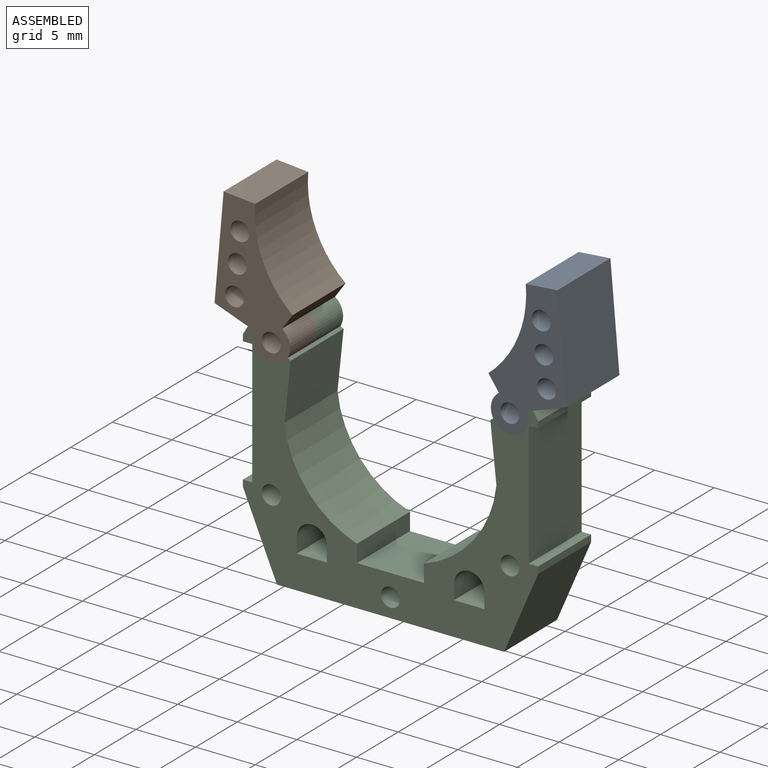
[diagram: assembled view]
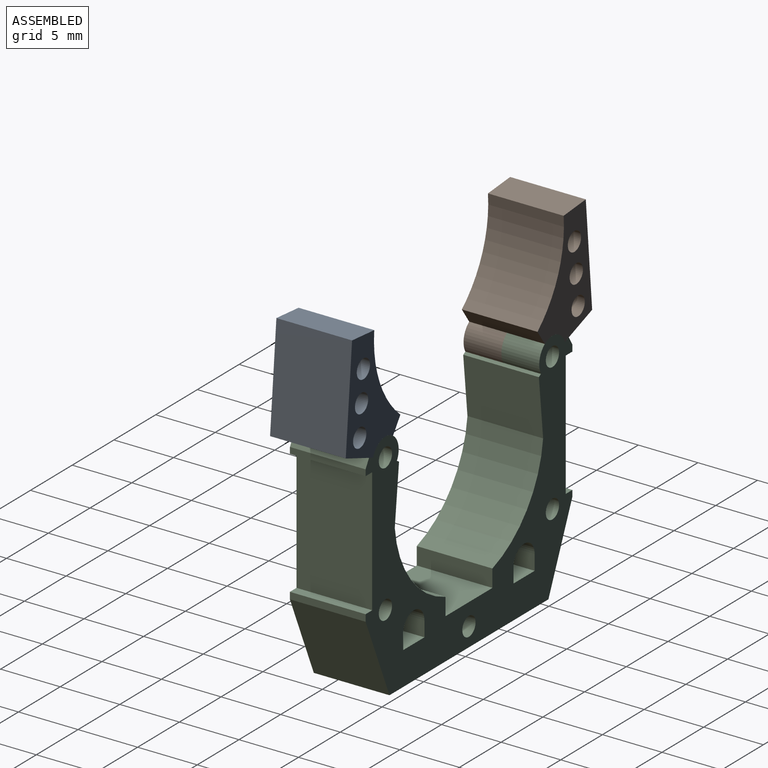
[diagram: assembled view, second angle]
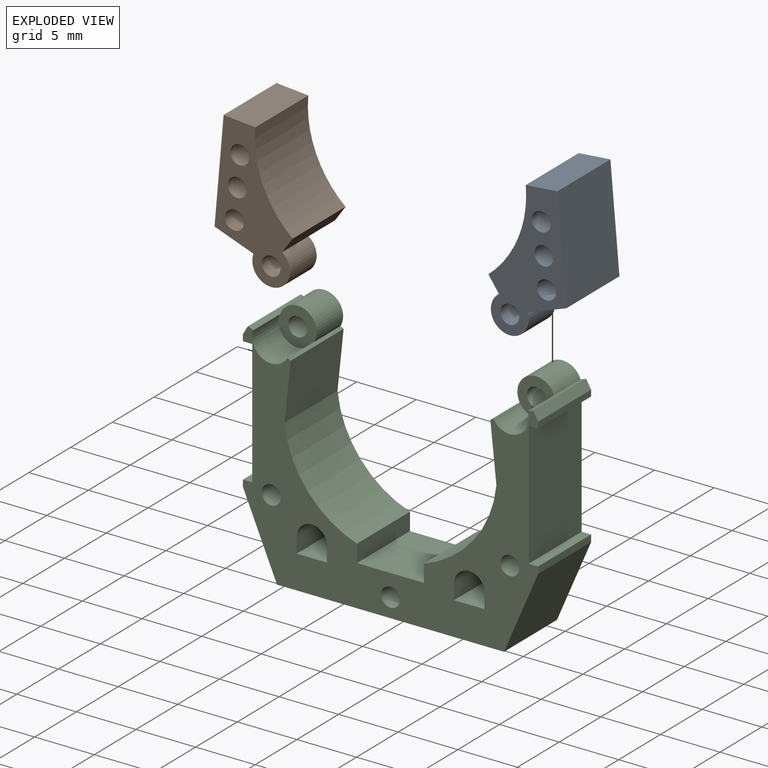
[diagram: exploded view]
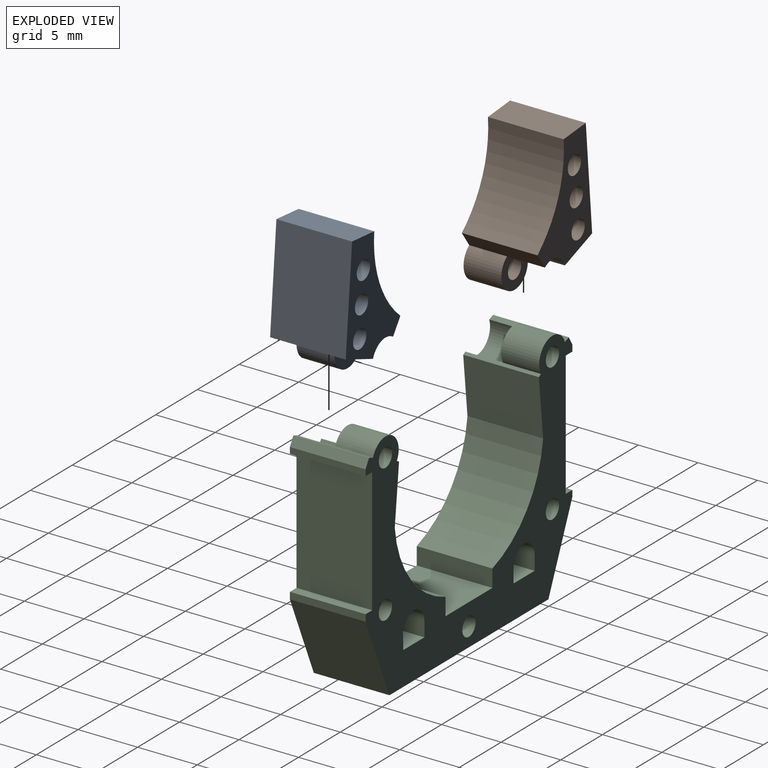
[diagram: exploded view, second angle]
ASSEMBLY  parts=3 mates=2
PART A: 14 faces, bbox 11.6x6.4x6.5 mm
  f0: cylinder r=1.59mm len=3.18mm, axis (0,1,0), area 22.4mm2, adj f2,f3,f10,f13
  f1: cylinder r=0.79mm len=3.18mm, axis (0,1,0), area 15.8mm2, adj f10,f13
  f2: plane 6.35x1.33mm, normal (0.5,0,-0.87), area 9.8mm2, adj f0,f6,f10,f11,f12
  f3: plane 6.35x3.36mm, normal (0.97,0,0.26), area 22.1mm2, adj f0,f4,f10,f11,f12
  f4: plane 8.7x6.35mm, normal (0,0,1), area 55.2mm2, adj f3,f5,f10,f11
  f5: plane 6.35x2.67mm, normal (-1,0,0), area 16.9mm2, adj f4,f6,f10,f11
  f6: cylinder r=8.94mm len=7.3mm, axis (0,1,0), area 54.3mm2, adj f2,f5,f10,f11
  f7: cylinder r=0.79mm len=6.35mm, axis (0,1,0), area 31.7mm2, adj f10,f11
  f8: cylinder r=0.79mm len=6.35mm, axis (0,1,0), area 31.7mm2, adj f10,f11
  f9: cylinder r=0.79mm len=6.35mm, axis (0,1,0), area 31.7mm2, adj f10,f11
  f10: plane 11.6x6.48mm, normal (0,-1,0), area 37.6mm2, adj f0,f1,f2,f3,f4,f5,f6,f7
  f11: plane 9.6x6.45mm, normal (0,1,0), area 31.6mm2, adj f2,f3,f4,f5,f6,f7,f8,f9
  f12: cylinder r=1.59mm len=3.18mm, axis (0,1,0), area 9.2mm2, adj f2,f3,f11,f13
  f13: plane 3.18x3.18mm, normal (0,1,0), area 5.9mm2, adj f0,f1,f12
PART B: 14 faces, bbox 11.6x6.4x6.5 mm
  f0: plane 9.6x6.45mm, normal (0,1,0), area 31.6mm2, adj f2,f3,f4,f5,f6,f7,f8,f10
  f1: cylinder r=0.79mm len=3.18mm, axis (0,1,0), area 15.8mm2, adj f11,f13
  f2: plane 6.35x1.33mm, normal (-0.5,0,-0.87), area 9.8mm2, adj f0,f3,f9,f11,f12
  f3: cylinder r=8.94mm len=7.3mm, axis (0,1,0), area 54.3mm2, adj f0,f2,f4,f11
  f4: plane 6.35x2.67mm, normal (1,0,0), area 16.9mm2, adj f0,f3,f5,f11
  f5: plane 8.7x6.35mm, normal (0,0,1), area 55.2mm2, adj f0,f4,f6,f11
  f6: plane 6.35x3.36mm, normal (-0.97,0,0.26), area 22.1mm2, adj f0,f5,f9,f11,f12
  f7: cylinder r=0.79mm len=6.35mm, axis (0,1,0), area 31.7mm2, adj f0,f11
  f8: cylinder r=0.79mm len=6.35mm, axis (0,1,0), area 31.7mm2, adj f0,f11
  f9: cylinder r=1.59mm len=3.18mm, axis (0,1,0), area 22.4mm2, adj f2,f6,f11,f13
  f10: cylinder r=0.79mm len=6.35mm, axis (0,1,0), area 31.7mm2, adj f0,f11
  f11: plane 11.6x6.48mm, normal (0,-1,0), area 37.6mm2, adj f1,f2,f3,f4,f5,f6,f7,f8
  f12: cylinder r=1.59mm len=3.18mm, axis (0,1,0), area 9.2mm2, adj f0,f2,f6,f13
  f13: plane 3.18x3.18mm, normal (0,1,0), area 5.9mm2, adj f1,f9,f12
PART C: 47 faces, bbox 24.8x6.4x19.8 mm
  f0: cylinder r=1.59mm len=3.18mm, axis (0,1,0), area 16.7mm2, adj f15,f16,f42,f44
  f1: cylinder r=1.59mm len=3.18mm, axis (0,1,0), area 16.7mm2, adj f24,f25,f42,f46
  f2: cylinder r=0.79mm len=3.18mm, axis (0,1,0), area 15.8mm2, adj f42,f44
  f3: cylinder r=0.79mm len=3.18mm, axis (0,1,0), area 15.8mm2, adj f42,f46
  f4: plane 24.78x18.94mm, normal (0,-1,0), area 176.4mm2, adj f5,f6,f7,f8,f9,f10,f11,f12
  f5: plane 6.35x1.27mm, normal (-1,0,0), area 8.1mm2, adj f4,f6,f37,f42
  f6: plane 6.35x2.54mm, normal (0,0,1), area 16.1mm2, adj f4,f5,f7,f42
  f7: plane 6.35x1.27mm, normal (1,0,0), area 8.1mm2, adj f4,f6,f37,f42
  f8: plane 6.35x1.27mm, normal (-1,0,0), area 8.1mm2, adj f4,f9,f38,f42
  f9: plane 6.35x2.54mm, normal (0,0,1), area 16.1mm2, adj f4,f8,f10,f42
  f10: plane 6.35x1.27mm, normal (1,0,0), area 8.1mm2, adj f4,f9,f38,f42
  f11: plane 10.47x6.35mm, normal (1,0,0), area 66.5mm2, adj f4,f12,f41,f42
  f12: plane 6.35x0.79mm, normal (0,0,-1), area 5mm2, adj f4,f11,f13,f42
  f13: plane 6.35x0.52mm, normal (1,0,0), area 3.3mm2, adj f4,f12,f14,f42
  f14: plane 6.35x0.71mm, normal (0.86,0,0.51), area 5.3mm2, adj f4,f13,f15,f42
  f15: plane 6.35x0.47mm, normal (-0.34,0,0.94), area 3.2mm2, adj f0,f4,f14,f42,f43
  f16: plane 6.35x0.25mm, normal (-0.5,0,0.87), area 1.9mm2, adj f0,f4,f17,f42,f43
  f17: plane 6.35x4.84mm, normal (-0.99,0,-0.1), area 30.9mm2, adj f4,f16,f18,f42
  f18: cylinder r=8.94mm len=7.55mm, axis (0,1,0), area 65mm2, adj f4,f17,f19,f42
  f19: plane 6.35x1.47mm, normal (-1,0,0), area 9.3mm2, adj f4,f18,f20,f42
  f20: plane 6.35x5.63mm, normal (0,0,1), area 35.7mm2, adj f4,f19,f21,f42
  f21: plane 6.35x1.47mm, normal (1,0,0), area 9.3mm2, adj f4,f20,f22,f42
  f22: cylinder r=8.94mm len=7.55mm, axis (0,1,0), area 65mm2, adj f4,f21,f23,f42
  f23: plane 6.35x4.84mm, normal (0.99,0,-0.1), area 30.9mm2, adj f4,f22,f24,f42
  f24: plane 6.35x0.25mm, normal (0.5,0,0.87), area 1.9mm2, adj f1,f4,f23,f42,f45
  f25: plane 6.35x0.47mm, normal (0.34,0,0.94), area 3.2mm2, adj f1,f4,f26,f42,f45
  f26: plane 6.35x0.71mm, normal (-0.86,0,0.51), area 5.3mm2, adj f4,f25,f27,f42
  f27: plane 6.35x0.53mm, normal (-1,0,0), area 3.4mm2, adj f4,f26,f28,f42
  f28: plane 6.35x0.79mm, normal (0,0,-1), area 5mm2, adj f4,f27,f29,f42
  f29: plane 10.49x6.35mm, normal (-1,0,0), area 66.6mm2, adj f4,f28,f30,f42
  f30: plane 6.35x0.79mm, normal (0,0,1), area 5mm2, adj f4,f29,f31,f42
  f31: plane 6.35x0.53mm, normal (-1,0,0), area 3.4mm2, adj f4,f30,f32,f42
  f32: plane 6.67x6.35mm, normal (-0.92,0,-0.39), area 46.1mm2, adj f4,f31,f33,f42
  f33: plane 19.05x6.35mm, normal (0,0,-1), area 121mm2, adj f4,f32,f34,f42
  f34: plane 6.67x6.35mm, normal (0.92,0,-0.39), area 46.1mm2, adj f4,f33,f35,f42
  f35: plane 6.35x0.57mm, normal (1,0,0), area 3.6mm2, adj f4,f34,f41,f42
  f36: cylinder r=0.79mm len=6.35mm, axis (0,1,0), area 31.7mm2, adj f4,f42
  f37: cylinder r=1.27mm len=6.35mm, axis (0,1,0), area 25.3mm2, adj f4,f5,f7,f42
  f38: cylinder r=1.27mm len=6.35mm, axis (0,1,0), area 25.3mm2, adj f4,f8,f10,f42
  f39: cylinder r=0.79mm len=6.35mm, axis (0,1,0), area 31.7mm2, adj f4,f42
  f40: cylinder r=0.79mm len=6.35mm, axis (0,1,0), area 31.7mm2, adj f4,f42
  f41: plane 6.35x0.79mm, normal (0,0,1), area 5mm2, adj f4,f11,f35,f42
  f42: plane 24.78x19.81mm, normal (0,1,0), area 188.3mm2, adj f0,f1,f2,f3,f5,f6,f7,f8
  f43: cylinder r=1.59mm len=3.18mm, axis (0,-1,0), area 15mm2, adj f4,f15,f16,f44
  f44: plane 3.18x3.18mm, normal (0,-1,0), area 5.9mm2, adj f0,f2,f43
  f45: cylinder r=1.59mm len=3.18mm, axis (0,-1,0), area 15mm2, adj f4,f24,f25,f46
  f46: plane 3.18x3.18mm, normal (0,-1,0), area 5.9mm2, adj f1,f3,f45
PLACE A rot(axis=(0,1,0),85deg) t=(-78.49,0.1,4.2)mm
PLACE B rot(axis=(0,-1,0),85deg) t=(4.94,0.1,84.01)mm
PLACE C rot(axis=(0,-1,0),0deg) t=(-0.21,0.1,-12.44)mm fixed
MATE cylindrical B.f1 <-> C.f1  axis (0,1,0) through (-50.29,-3.07,38.6)mm
MATE cylindrical A.f0 <-> C.f0  axis (0,1,0) through (-30.27,-3.07,38.6)mm
